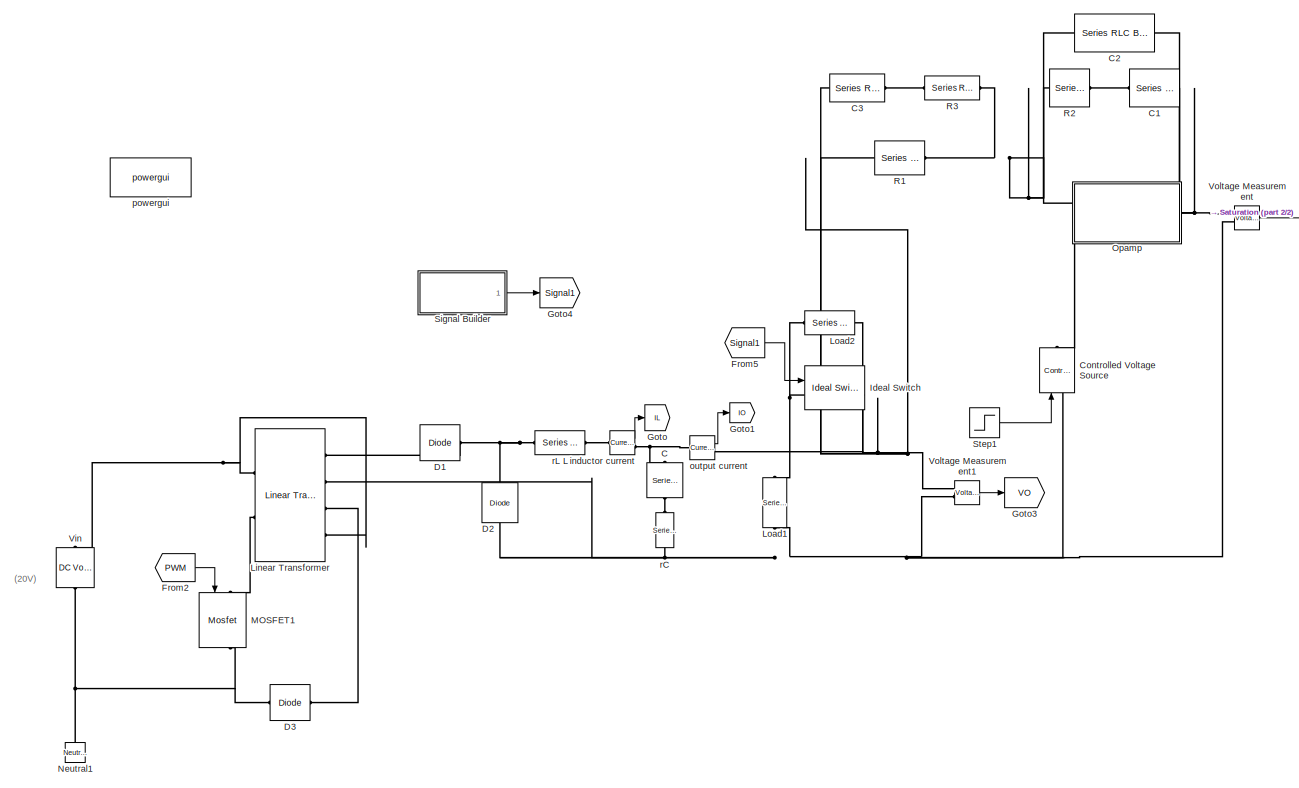
[diagram: root canvas - part 1/2, center side, full height]
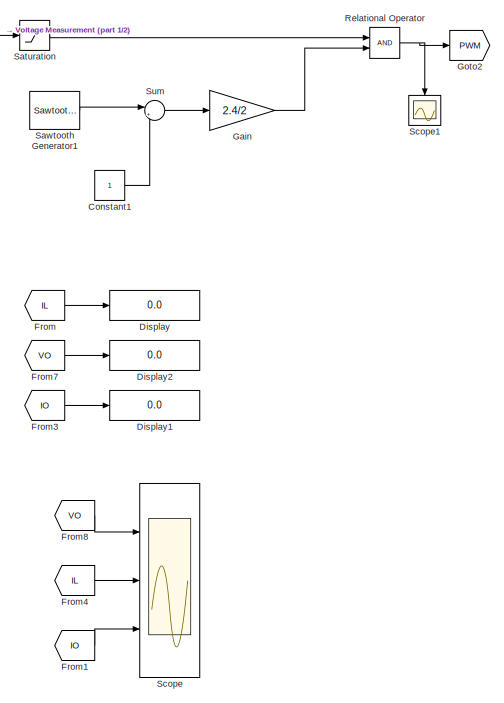
[diagram: root canvas - part 2/2, right side, full height]
MODEL slx_af51a8ef6da2
KIND model
CONFIG AbsTol = auto
CONFIG EnableMultiTasking = off
CONFIG FixedStep = auto
CONFIG MaxStep = 1e-6
CONFIG MinStep = 1e-8
CONFIG RelTol = 1e-3
CONFIG SampleTimeConstraint = Unconstrained
CONFIG SolverName = VariableStepAuto
CONFIG StartTime = 0.0
CONFIG StopTime = 7e-3
BLOCK [Reference] C  REF=spsSeriesRLCBranchLib/Series RLC Branch
  NameLocation = left
  Ports = [0, 0, 0, 0, 0, 1, 1]
  SourceBlock = spsSeriesRLCBranchLib/Series RLC Branch
  SourceProductBaseCode = PS
  SourceType = Series RLC Branch
BLOCK [Reference] C1  REF=spsSeriesRLCBranchLib/Series RLC Branch
  Ports = [0, 0, 0, 0, 0, 1, 1]
  SourceBlock = spsSeriesRLCBranchLib/Series RLC Branch
  SourceProductBaseCode = PS
  SourceType = Series RLC Branch
BLOCK [Reference] C2  REF=spsSeriesRLCBranchLib/Series RLC Branch
  Ports = [0, 0, 0, 0, 0, 1, 1]
  SourceBlock = spsSeriesRLCBranchLib/Series RLC Branch
  SourceProductBaseCode = PS
  SourceType = Series RLC Branch
BLOCK [Reference] C3  REF=spsSeriesRLCBranchLib/Series RLC Branch
  Ports = [0, 0, 0, 0, 0, 1, 1]
  SourceBlock = spsSeriesRLCBranchLib/Series RLC Branch
  SourceProductBaseCode = PS
  SourceType = Series RLC Branch
BLOCK [Constant] Constant1
BLOCK [Reference] Controlled Voltage Source  REF=spsControlledVoltageSourceLib/Controlled Voltage Source
  Ports = [1, 0, 0, 0, 0, 1, 1]
  SourceBlock = spsControlledVoltageSourceLib/Controlled Voltage Source
  SourceProductBaseCode = PS
  SourceType = Controlled Voltage Source
BLOCK [Reference] D1  REF=spsDiodeLib/Diode
  NameLocation = top
  Ports = [0, 0, 0, 0, 0, 1, 1]
  SourceBlock = spsDiodeLib/Diode
  SourceProductBaseCode = PS
  SourceType = Diode
BLOCK [Reference] D2  REF=spsDiodeLib/Diode
  NameLocation = right
  Ports = [0, 0, 0, 0, 0, 1, 1]
  SourceBlock = spsDiodeLib/Diode
  SourceProductBaseCode = PS
  SourceType = Diode
BLOCK [Reference] D3  REF=spsDiodeLib/Diode
  Ports = [0, 0, 0, 0, 0, 1, 1]
  SourceBlock = spsDiodeLib/Diode
  SourceProductBaseCode = PS
  SourceType = Diode
BLOCK [Display] Display
  Decimation = 1
  Ports = [1]
BLOCK [Display] Display1
  Decimation = 1
  Ports = [1]
BLOCK [Display] Display2
  Decimation = 1
  Ports = [1]
BLOCK [From] From
  GotoTag = IL
BLOCK [From] From1
  GotoTag = IO
BLOCK [From] From2
  GotoTag = PWM
  NameLocation = top
  TagVisibility = global
BLOCK [From] From3
  GotoTag = IO
BLOCK [From] From4
  GotoTag = IL
BLOCK [From] From5
  GotoTag = Signal1
  TagVisibility = global
BLOCK [From] From7
  GotoTag = VO
BLOCK [From] From8
  GotoTag = VO
BLOCK [Gain] Gain
  Gain = 2.4/2
BLOCK [Goto] Goto
  GotoTag = IL
BLOCK [Goto] Goto1
  GotoTag = IO
BLOCK [Goto] Goto2
  GotoTag = PWM
  TagVisibility = global
BLOCK [Goto] Goto3
  GotoTag = VO
BLOCK [Goto] Goto4
  GotoTag = Signal1
  TagVisibility = global
BLOCK [Reference] Ideal Switch  REF=spsIdealSwitchLib/Ideal Switch
  Ports = [1, 1, 0, 0, 0, 1, 1]
  SourceBlock = spsIdealSwitchLib/Ideal Switch
  SourceProductBaseCode = PS
  SourceType = Ideal Switch
BLOCK [Reference] Linear Transformer  REF=spsLinearTransformerLib/Linear Transformer
  Ports = [0, 0, 0, 0, 0, 2, 4]
  SourceBlock = spsLinearTransformerLib/Linear Transformer
  SourceProductBaseCode = PS
  SourceType = Linear Transformer
BLOCK [Reference] Load1  REF=spsSeriesRLCBranchLib/Series RLC Branch
  NameLocation = right
  Ports = [0, 0, 0, 0, 0, 1, 1]
  SourceBlock = spsSeriesRLCBranchLib/Series RLC Branch
  SourceProductBaseCode = PS
  SourceType = Series RLC Branch
BLOCK [Reference] Load2  REF=spsSeriesRLCBranchLib/Series RLC Branch
  Ports = [0, 0, 0, 0, 0, 1, 1]
  SourceBlock = spsSeriesRLCBranchLib/Series RLC Branch
  SourceProductBaseCode = PS
  SourceType = Series RLC Branch
BLOCK [Reference] MOSFET1  REF=spsMosfetLib/Mosfet
  NameLocation = left
  Ports = [1, 1, 0, 0, 0, 1, 1]
  SourceBlock = spsMosfetLib/Mosfet
  SourceProductBaseCode = PS
  SourceType = Mosfet
BLOCK [Reference] Neutral1  REF=spsNeutralLib/Neutral
  AttributesFormatString = node %<NodeNumber>
  NameLocation = right
  Ports = [0, 0, 0, 0, 0, 1]
  SourceBlock = spsNeutralLib/Neutral
  SourceProductBaseCode = PS
  SourceType = Neutral
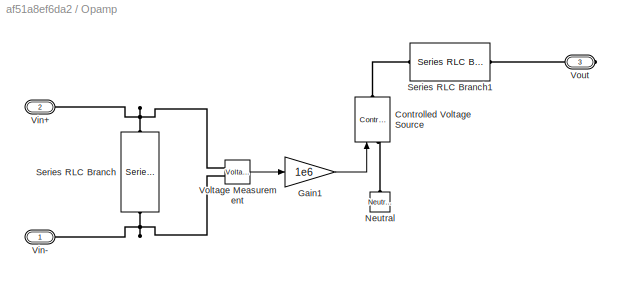
BLOCK [SubSystem] Opamp
  Ports = [0, 0, 0, 0, 0, 2, 1]
  RequestExecContextInheritance = off
BLOCK [Reference] Opamp/Controlled Voltage Source  REF=spsControlledVoltageSourceLib/Controlled Voltage Source
  Ports = [1, 0, 0, 0, 0, 1, 1]
  SourceBlock = spsControlledVoltageSourceLib/Controlled Voltage Source
  SourceProductBaseCode = PS
  SourceType = Controlled Voltage Source
BLOCK [Gain] Opamp/Gain1
  Gain = 1e6
BLOCK [Reference] Opamp/Neutral  REF=spsNeutralLib/Neutral
  AttributesFormatString = node %<NodeNumber>
  NameLocation = right
  Ports = [0, 0, 0, 0, 0, 1]
  SourceBlock = spsNeutralLib/Neutral
  SourceProductBaseCode = PS
  SourceType = Neutral
BLOCK [Reference] Opamp/Series RLC Branch  REF=spsSeriesRLCBranchLib/Series RLC Branch
  NameLocation = left
  Ports = [0, 0, 0, 0, 0, 1, 1]
  SourceBlock = spsSeriesRLCBranchLib/Series RLC Branch
  SourceProductBaseCode = PS
  SourceType = Series RLC Branch
BLOCK [Reference] Opamp/Series RLC Branch1  REF=spsSeriesRLCBranchLib/Series RLC Branch
  NameLocation = top
  Ports = [0, 0, 0, 0, 0, 1, 1]
  SourceBlock = spsSeriesRLCBranchLib/Series RLC Branch
  SourceProductBaseCode = PS
  SourceType = Series RLC Branch
BLOCK [PMIOPort] Opamp/Vin+
  Port = 2
  Side = Left
BLOCK [PMIOPort] Opamp/Vin-
  Side = Left
BLOCK [Reference] Opamp/Voltage Measurement  REF=spsVoltageMeasurementLib/Voltage Measurement
  Ports = [0, 1, 0, 0, 0, 2]
  SourceBlock = spsVoltageMeasurementLib/Voltage Measurement
  SourceProductBaseCode = PS
  SourceType = Voltage Measurement
  UserDataPersistent = on
BLOCK [PMIOPort] Opamp/Vout
  Port = 3
  Side = Right
BLOCK [Reference] R1  REF=spsSeriesRLCBranchLib/Series RLC Branch
  Ports = [0, 0, 0, 0, 0, 1, 1]
  SourceBlock = spsSeriesRLCBranchLib/Series RLC Branch
  SourceProductBaseCode = PS
  SourceType = Series RLC Branch
BLOCK [Reference] R2  REF=spsSeriesRLCBranchLib/Series RLC Branch
  Ports = [0, 0, 0, 0, 0, 1, 1]
  SourceBlock = spsSeriesRLCBranchLib/Series RLC Branch
  SourceProductBaseCode = PS
  SourceType = Series RLC Branch
BLOCK [Reference] R3  REF=spsSeriesRLCBranchLib/Series RLC Branch
  Ports = [0, 0, 0, 0, 0, 1, 1]
  SourceBlock = spsSeriesRLCBranchLib/Series RLC Branch
  SourceProductBaseCode = PS
  SourceType = Series RLC Branch
BLOCK [RelationalOperator] Relational Operator
  InputSameDT = off
  OutDataTypeStr = boolean
  Ports = [2, 1]
  RndMeth = Simplest
BLOCK [Saturate] Saturation
  LowerLimit = 0.1
  UpperLimit = 0.8
BLOCK [Reference] Sawtooth Generator1  REF=spsSawtoothGeneratorLib/Sawtooth
Generator
  Ports = [0, 1]
  SourceBlock = spsSawtoothGeneratorLib/Sawtooth\nGenerator
  SourceProductBaseCode = PS
  SourceType = Sawtooth Generator
BLOCK [Scope] Scope
  Floating = off
  NumInputPorts = 3
  Ports = [3]
  ScopeSpecificationString = Simulink.scopes.TimeScopeBlockCfg('CurrentConfiguration', extmgr.ConfigurationSet(extmgr.Configuration('Core','General UI',true),extmgr.Configuration('Core','Source UI',true),extmgr.Configuration('Sources','WiredSimulink',true,'DataLoggingVariableName','ScopeData1'),extmgr.Configuration('Visuals','Time Domain',true,'SerializedDisplays',{struct('MinYLimReal','-2.33169','MaxYLimReal','20.98529','YLa...<+2798ch>
BLOCK [Scope] Scope1
  Floating = off
  NameLocation = left
  NumInputPorts = 1
  Ports = [1]
  ScopeSpecificationString = Simulink.scopes.TimeScopeBlockCfg('CurrentConfiguration', extmgr.ConfigurationSet(extmgr.Configuration('Core','General UI',true),extmgr.Configuration('Core','Source UI',true),extmgr.Configuration('Sources','WiredSimulink',true,'DataLoggingVariableName','ScopeData1'),extmgr.Configuration('Visuals','Time Domain',true,'SerializedDisplays',{struct('MinYLimReal','-0.125','MaxYLimReal','1.125','YLabelRe...<+1437ch>
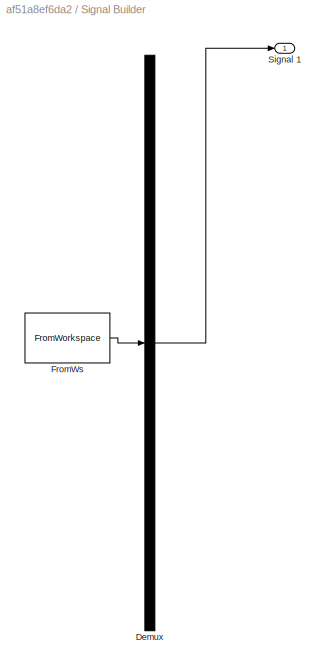
BLOCK [SubSystem] Signal Builder
  ClipboardFcn = sigbuilder_block('clipboard');
  CloseFcn = sigbuilder_block('close');
  ContinueFcn = sigbuilder_block('continue');
  CopyFcn = sigbuilder_block('copy');
  DeleteFcn = sigbuilder_block('delete');
  LoadFcn = sigbuilder_block('load');
  MaskHideContents = on
  ModelCloseFcn = sigbuilder_block('modelClose');
  NameChangeFcn = sigbuilder_block('namechange');
  OpenFcn = sigbuilder_block('open',[494.25 201.75 550.5 399.75 ]);
  PauseFcn = sigbuilder_block('pause');
  Ports = [0, 1]
  PreSaveFcn = sigbuilder_block('preSave');
  RequestExecContextInheritance = off
  StartFcn = sigbuilder_block('start');
  StopFcn = sigbuilder_block('stop');
  Tag = STV Subsys
BLOCK [Demux] Signal Builder/Demux
  DisplayOption = none
  Outputs = 1
  Ports = [1, 1]
  Tag = STV Demux
BLOCK [FromWorkspace] Signal Builder/FromWs
  Tag = STV FromWs
  VariableName = tuvar
BLOCK [Outport] Signal Builder/Signal 1
  Tag = STV Outport
BLOCK [Step] Step1
  After = 1.2
  Before = 1
  SampleTime = 0
  Time = 5e-3
  ZeroCross = off
BLOCK [Sum] Sum
  Inputs = |++
  Ports = [2, 1]
BLOCK [Reference] Vin  REF=spsDCVoltageSourceLib/DC Voltage Source
  NameLocation = left
  Ports = [0, 0, 0, 0, 0, 1, 1]
  SourceBlock = spsDCVoltageSourceLib/DC Voltage Source
  SourceProductBaseCode = PS
  SourceType = DC Voltage Source
BLOCK [Reference] Voltage Measurement  REF=spsVoltageMeasurementLib/Voltage Measurement
  Ports = [0, 1, 0, 0, 0, 2]
  SourceBlock = spsVoltageMeasurementLib/Voltage Measurement
  SourceProductBaseCode = PS
  SourceType = Voltage Measurement
  UserDataPersistent = on
BLOCK [Reference] Voltage Measurement1  REF=spsVoltageMeasurementLib/Voltage Measurement
  Ports = [0, 1, 0, 0, 0, 2]
  SourceBlock = spsVoltageMeasurementLib/Voltage Measurement
  SourceProductBaseCode = PS
  SourceType = Voltage Measurement
  UserDataPersistent = on
BLOCK [Reference] inductor current  REF=spsCurrentMeasurementLib/Current Measurement
  Ports = [0, 1, 0, 0, 0, 1, 1]
  SourceBlock = spsCurrentMeasurementLib/Current Measurement
  SourceProductBaseCode = PS
  SourceType = Current Measurement
  UserDataPersistent = on
BLOCK [Reference] output current  REF=spsCurrentMeasurementLib/Current Measurement
  Ports = [0, 1, 0, 0, 0, 1, 1]
  SourceBlock = spsCurrentMeasurementLib/Current Measurement
  SourceProductBaseCode = PS
  SourceType = Current Measurement
  UserDataPersistent = on
BLOCK [Reference] powergui  REF=spspowerguiLib/powergui
  Ports = []
  Priority = 1
  SourceBlock = spspowerguiLib/powergui
  SourceProductBaseCode = PS
  SourceType = PSB option menu block
BLOCK [Reference] rC  REF=spsSeriesRLCBranchLib/Series RLC Branch
  NameLocation = left
  Ports = [0, 0, 0, 0, 0, 1, 1]
  SourceBlock = spsSeriesRLCBranchLib/Series RLC Branch
  SourceProductBaseCode = PS
  SourceType = Series RLC Branch
BLOCK [Reference] rL   L  REF=spsSeriesRLCBranchLib/Series RLC Branch
  Ports = [0, 0, 0, 0, 0, 1, 1]
  SourceBlock = spsSeriesRLCBranchLib/Series RLC Branch
  SourceProductBaseCode = PS
  SourceType = Series RLC Branch
ANNOTATION (root): (20V)
LINE Constant1:1 -> Sum:2
LINE From1:1 -> Scope:3
LINE From2:1 -> MOSFET1:1
LINE From3:1 -> Display1:1
LINE From4:1 -> Scope:2
LINE From5:1 -> Ideal Switch:1
LINE From7:1 -> Display2:1
LINE From8:1 -> Scope:1
LINE From:1 -> Display:1
LINE Gain:1 -> Relational Operator:2
LINE Opamp/Gain1:1 -> Opamp/Controlled Voltage Source:1
LINE Opamp/Voltage Measurement:1 -> Opamp/Gain1:1
NET Relational Operator:1 -> Goto2:1, Scope1:1
LINE Saturation:1 -> Relational Operator:1
LINE Sawtooth Generator1:1 -> Sum:1
LINE Signal Builder:1 -> Goto4:1
LINE Step1:1 -> Controlled Voltage Source:1
LINE Sum:1 -> Gain:1
LINE Voltage Measurement1:1 -> Goto3:1
LINE Voltage Measurement:1 -> Saturation:1
LINE inductor current:1 -> Goto:1
LINE output current:1 -> Goto1:1
PLINE C1:LConn1 -- R2:RConn1
PNET net1: C1:RConn1 -- C2:RConn1 -- Opamp:RConn1 -- Voltage Measurement:LConn1
PNET net2: C2:LConn1 -- Opamp:LConn1 -- R1:RConn1 -- R2:LConn1 -- R3:RConn1
PNET net3: C3:LConn1 -- Ideal Switch:RConn1 -- Load2:LConn1 -- R1:LConn1 -- Voltage Measurement1:LConn1 -- output current:RConn1
PLINE C3:RConn1 -- R3:LConn1
PNET net4: C:LConn1 -- inductor current:RConn1 -- output current:LConn1
PLINE C:RConn1 -- rC:LConn1
PNET net5: Controlled Voltage Source:LConn1 -- D2:LConn1 -- Linear Transformer:RConn2 -- Load1:RConn1 -- Voltage Measurement1:LConn2 -- Voltage Measurement:LConn2 -- rC:RConn1
PLINE Controlled Voltage Source:RConn1 -- Opamp:LConn2
PLINE D1:LConn1 -- Linear Transformer:RConn1
PNET net6: D1:RConn1 -- D2:RConn1 -- rL   L:LConn1
PNET net7: D3:LConn1 -- MOSFET1:RConn1 -- Neutral1:LConn1 -- Vin:LConn1
PLINE D3:RConn1 -- Linear Transformer:RConn3
PNET net8: Ideal Switch:LConn1 -- Load1:LConn1 -- Load2:RConn1
PNET net9: Linear Transformer:LConn1 -- Linear Transformer:RConn4 -- Vin:RConn1
PLINE Linear Transformer:LConn2 -- MOSFET1:LConn1
PLINE Opamp/Controlled Voltage Source:LConn1 -- Opamp/Neutral:LConn1
PLINE Opamp/Controlled Voltage Source:RConn1 -- Opamp/Series RLC Branch1:RConn1
PLINE Opamp/Series RLC Branch1:LConn1 -- Opamp/Vout:RConn1
PNET net10: Opamp/Series RLC Branch:LConn1 -- Opamp/Vin+:RConn1 -- Opamp/Voltage Measurement:LConn1
PNET net11: Opamp/Series RLC Branch:RConn1 -- Opamp/Vin-:RConn1 -- Opamp/Voltage Measurement:LConn2
PLINE inductor current:LConn1 -- rL   L:RConn1
note: NET lines group one-source signal fan-out (src -> all destinations, sorted); 1:1 wires keep LINE; PNET lines group multi-terminal physical nets as a canonical sorted terminal list (undirected conserving connections); 2-terminal nets keep the pairwise PLINE form
